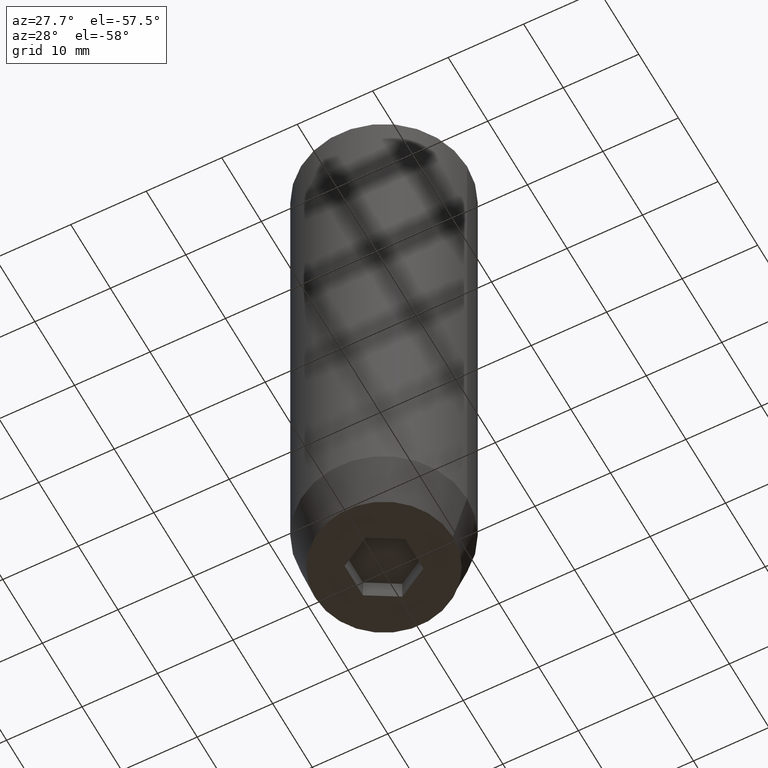
[diagram: clean part render]
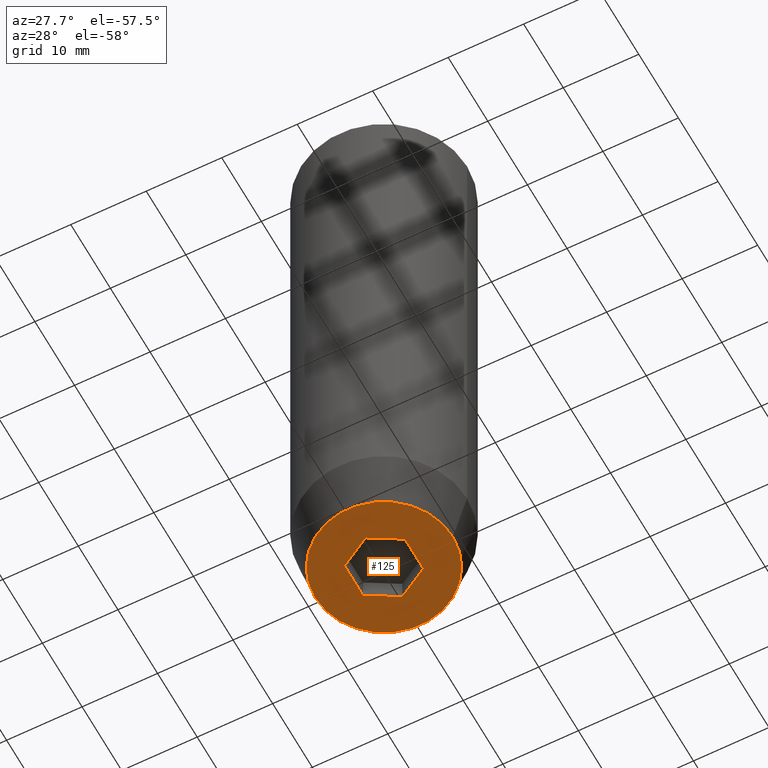
[diagram: same view with one face highlighted and labeled with its STEP entity id]
A machine part, auxiliary view. The second image highlights one B-rep face of the part: STEP entity #125.
In plain terms, the highlighted planar face has unit normal (0, 0, -1).
Its self-contained STEP definition (entity closure, byte-faithful):
#6 = PLANE ( 'NONE',  #464 ) ;
#7 = CARTESIAN_POINT ( 'NONE',  ( 9.124355652982137244, 0.000000000000000000, -80.00000000000001421 ) ) ;
#44 = EDGE_CURVE ( 'NONE', #545, #187, #167, .T. ) ;
#53 = LINE ( 'NONE', #230, #360 ) ;
#80 = VERTEX_POINT ( 'NONE', #368 ) ;
#89 = VERTEX_POINT ( 'NONE', #287 ) ;
#94 = CARTESIAN_POINT ( 'NONE',  ( 0.000000000000000000, 0.000000000000000000, -80.00000000000001421 ) ) ;
#124 = ORIENTED_EDGE ( 'NONE', *, *, #253, .F. ) ;
#125 = ADVANCED_FACE ( 'NONE', ( #363, #237 ), #6, .T. ) ;
#131 = CARTESIAN_POINT ( 'NONE',  ( 4.000000000000000000, -2.309401076758502480, -80.00000000000001421 ) ) ;
#138 = CARTESIAN_POINT ( 'NONE',  ( -2.000000000000000000, 3.464101615137754830, -80.00000000000001421 ) ) ;
#141 = CARTESIAN_POINT ( 'NONE',  ( 4.000000000000000000, 2.309401076758503368, -80.00000000000001421 ) ) ;
#167 = LINE ( 'NONE', #138, #439 ) ;
#175 = DIRECTION ( 'NONE',  ( -0.000000000000000000, -0.000000000000000000, 1.000000000000000000 ) ) ;
#176 = DIRECTION ( 'NONE',  ( -1.000000000000000000, 0.000000000000000000, -0.000000000000000000 ) ) ;
#181 = CARTESIAN_POINT ( 'NONE',  ( 0.000000000000000000, 9.124355652982137244, -80.00000000000001421 ) ) ;
#185 = DIRECTION ( 'NONE',  ( 0.8660254037844385966, -0.5000000000000001110, 0.000000000000000000 ) ) ;
#187 = VERTEX_POINT ( 'NONE', #383 ) ;
#190 = CARTESIAN_POINT ( 'NONE',  ( -2.000000000000000888, -3.464101615137754386, -80.00000000000001421 ) ) ;
#201 = LINE ( 'NONE', #381, #535 ) ;
#203 = ORIENTED_EDGE ( 'NONE', *, *, #44, .F. ) ;
#209 = DIRECTION ( 'NONE',  ( 0.8660254037844387076, 0.5000000000000001110, 0.000000000000000000 ) ) ;
#218 = VERTEX_POINT ( 'NONE', #433 ) ;
#220 = EDGE_CURVE ( 'NONE', #89, #545, #201, .T. ) ;
#227 = DIRECTION ( 'NONE',  ( -0.000000000000000000, -0.000000000000000000, 1.000000000000000000 ) ) ;
#230 = CARTESIAN_POINT ( 'NONE',  ( 2.000000000000000888, -3.464101615137754386, -80.00000000000001421 ) ) ;
#237 = FACE_OUTER_BOUND ( 'NONE', #437, .T. ) ;
#241 = EDGE_CURVE ( 'NONE', #218, #506, #484, .T. ) ;
#253 = EDGE_CURVE ( 'NONE', #187, #554, #265, .T. ) ;
#264 = VERTEX_POINT ( 'NONE', #131 ) ;
#265 = LINE ( 'NONE', #347, #430 ) ;
#269 = CIRCLE ( 'NONE', #422, 9.124355652982137244 ) ;
#274 = LINE ( 'NONE', #460, #477 ) ;
#280 = VECTOR ( 'NONE', #557, 1000.000000000000114 ) ;
#286 = CARTESIAN_POINT ( 'NONE',  ( -4.000000000000000000, 2.309401076758503368, -80.00000000000001421 ) ) ;
#287 = CARTESIAN_POINT ( 'NONE',  ( -4.000000000000000000, -2.309401076758503368, -80.00000000000001421 ) ) ;
#310 = CARTESIAN_POINT ( 'NONE',  ( 0.000000000000000000, 0.000000000000000000, -80.00000000000001421 ) ) ;
#319 = DIRECTION ( 'NONE',  ( 1.000000000000000000, 0.000000000000000000, 0.000000000000000000 ) ) ;
#330 = LINE ( 'NONE', #190, #280 ) ;
#347 = CARTESIAN_POINT ( 'NONE',  ( 2.000000000000000444, 3.464101615137754386, -80.00000000000001421 ) ) ;
#357 = EDGE_CURVE ( 'NONE', #506, #218, #269, .T. ) ;
#360 = VECTOR ( 'NONE', #412, 1000.000000000000114 ) ;
#363 = FACE_BOUND ( 'NONE', #444, .T. ) ;
#368 = CARTESIAN_POINT ( 'NONE',  ( 4.336808689942017736E-16, -4.618802153517006737, -80.00000000000001421 ) ) ;
#379 = EDGE_CURVE ( 'NONE', #264, #80, #53, .T. ) ;
#380 = ORIENTED_EDGE ( 'NONE', *, *, #379, .F. ) ;
#381 = CARTESIAN_POINT ( 'NONE',  ( -4.000000000000000000, 0.000000000000000000, -80.00000000000001421 ) ) ;
#383 = CARTESIAN_POINT ( 'NONE',  ( 0.000000000000000000, 4.618802153517006737, -80.00000000000001421 ) ) ;
#406 = DIRECTION ( 'NONE',  ( 1.000000000000000000, 0.000000000000000000, 0.000000000000000000 ) ) ;
#408 = DIRECTION ( 'NONE',  ( 0.000000000000000000, -1.000000000000000000, 0.000000000000000000 ) ) ;
#412 = DIRECTION ( 'NONE',  ( -0.8660254037844384856, -0.5000000000000002220, 0.000000000000000000 ) ) ;
#415 = ORIENTED_EDGE ( 'NONE', *, *, #241, .F. ) ;
#422 = AXIS2_PLACEMENT_3D ( 'NONE', #94, #175, #319 ) ;
#430 = VECTOR ( 'NONE', #185, 1000.000000000000000 ) ;
#433 = CARTESIAN_POINT ( 'NONE',  ( -9.124355652982137244, 1.232261386766375901E-15, -80.00000000000001421 ) ) ;
#437 = EDGE_LOOP ( 'NONE', ( #447, #415 ) ) ;
#439 = VECTOR ( 'NONE', #209, 999.9999999999998863 ) ;
#444 = EDGE_LOOP ( 'NONE', ( #203, #457, #515, #380, #487, #124 ) ) ;
#447 = ORIENTED_EDGE ( 'NONE', *, *, #357, .F. ) ;
#457 = ORIENTED_EDGE ( 'NONE', *, *, #220, .F. ) ;
#460 = CARTESIAN_POINT ( 'NONE',  ( 4.000000000000000000, 0.000000000000000000, -80.00000000000001421 ) ) ;
#464 = AXIS2_PLACEMENT_3D ( 'NONE', #181, #501, #176 ) ;
#477 = VECTOR ( 'NONE', #408, 1000.000000000000000 ) ;
#484 = CIRCLE ( 'NONE', #556, 9.124355652982137244 ) ;
#487 = ORIENTED_EDGE ( 'NONE', *, *, #493, .F. ) ;
#493 = EDGE_CURVE ( 'NONE', #554, #264, #274, .T. ) ;
#501 = DIRECTION ( 'NONE',  ( 0.000000000000000000, 0.000000000000000000, -1.000000000000000000 ) ) ;
#506 = VERTEX_POINT ( 'NONE', #7 ) ;
#515 = ORIENTED_EDGE ( 'NONE', *, *, #544, .F. ) ;
#535 = VECTOR ( 'NONE', #570, 1000.000000000000000 ) ;
#544 = EDGE_CURVE ( 'NONE', #80, #89, #330, .T. ) ;
#545 = VERTEX_POINT ( 'NONE', #286 ) ;
#554 = VERTEX_POINT ( 'NONE', #141 ) ;
#556 = AXIS2_PLACEMENT_3D ( 'NONE', #310, #227, #406 ) ;
#557 = DIRECTION ( 'NONE',  ( -0.8660254037844384856, 0.5000000000000002220, 0.000000000000000000 ) ) ;
#570 = DIRECTION ( 'NONE',  ( 0.000000000000000000, 1.000000000000000000, 0.000000000000000000 ) ) ;